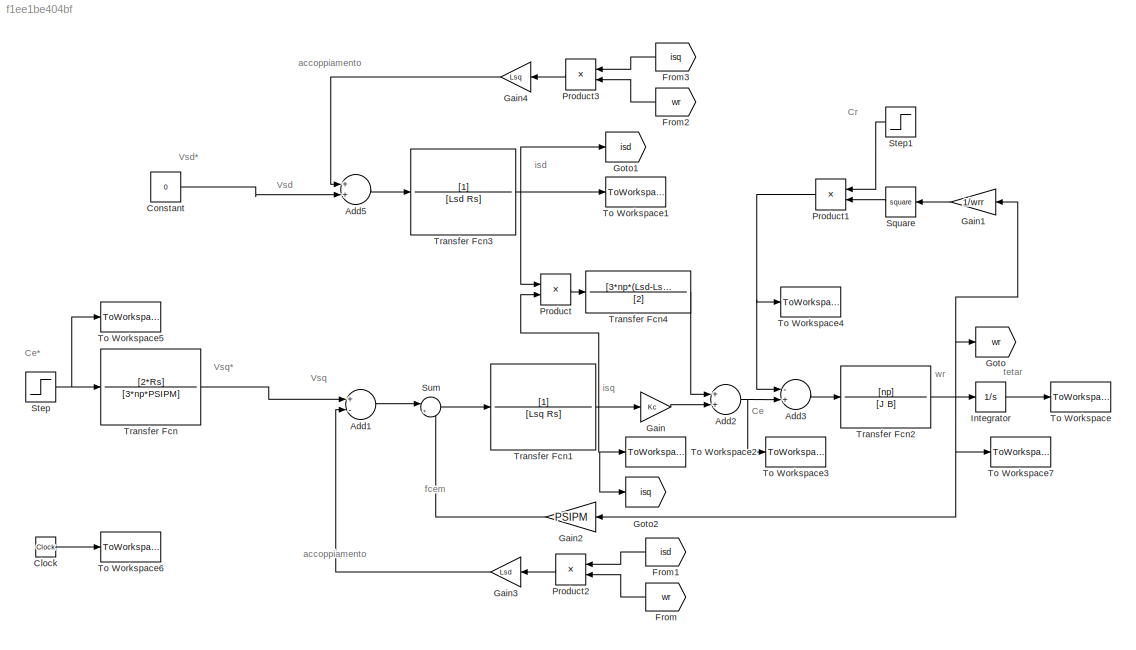
MODEL slx_f1ee1be404bf
KIND model
CONFIG AbsTol = auto
CONFIG EnableMultiTasking = off
CONFIG FixedStep = auto
CONFIG MaxStep = auto
CONFIG MinStep = auto
CONFIG RelTol = 1e-3
CONFIG SampleTimeConstraint = Unconstrained
CONFIG Solver = VariableStepAuto
CONFIG SolverName = VariableStepAuto
CONFIG StartTime = 0.0
CONFIG StopTime = 0.1
BLOCK [Sum] Add1
  InputSameDT = off
  Inputs = +-
  OutDataTypeStr = Inherit: Inherit via internal rule
  Ports = [2, 1]
  SaturateOnIntegerOverflow = off
BLOCK [Sum] Add2
  InputSameDT = off
  OutDataTypeStr = Inherit: Inherit via internal rule
  Ports = [2, 1]
  SaturateOnIntegerOverflow = off
BLOCK [Sum] Add3
  InputSameDT = off
  Inputs = -+
  OutDataTypeStr = Inherit: Inherit via internal rule
  Ports = [2, 1]
  SaturateOnIntegerOverflow = off
BLOCK [Sum] Add5
  InputSameDT = off
  OutDataTypeStr = Inherit: Inherit via internal rule
  Ports = [2, 1]
  SaturateOnIntegerOverflow = off
BLOCK [Clock] Clock
  Decimation = 1
BLOCK [Constant] Constant
  Value = 0
BLOCK [From] From
  GotoTag = wr
BLOCK [From] From1
  GotoTag = isd
BLOCK [From] From2
  GotoTag = wr
BLOCK [From] From3
  GotoTag = isq
BLOCK [Gain] Gain
  Gain = Kc
  OutDataTypeStr = Inherit: Inherit via internal rule
  ParamDataTypeStr = Inherit: Inherit via internal rule
  SaturateOnIntegerOverflow = off
BLOCK [Gain] Gain1
  Gain = 1/wrr
  OutDataTypeStr = Inherit: Inherit via internal rule
  ParamDataTypeStr = Inherit: Inherit via internal rule
  SaturateOnIntegerOverflow = off
BLOCK [Gain] Gain2
  Gain = PSIPM
  OutDataTypeStr = Inherit: Inherit via internal rule
  ParamDataTypeStr = Inherit: Inherit via internal rule
  SaturateOnIntegerOverflow = off
BLOCK [Gain] Gain3
  Gain = Lsd
  OutDataTypeStr = Inherit: Inherit via internal rule
  ParamDataTypeStr = Inherit: Inherit via internal rule
  SaturateOnIntegerOverflow = off
BLOCK [Gain] Gain4
  Gain = Lsq
  OutDataTypeStr = Inherit: Inherit via internal rule
  ParamDataTypeStr = Inherit: Inherit via internal rule
  SaturateOnIntegerOverflow = off
BLOCK [Goto] Goto
  GotoTag = wr
BLOCK [Goto] Goto1
  GotoTag = isd
BLOCK [Goto] Goto2
  GotoTag = isq
BLOCK [Integrator] Integrator
  Ports = [1, 1]
BLOCK [Product] Product
  InputSameDT = off
  OutDataTypeStr = Inherit: Inherit via internal rule
  Ports = [2, 1]
  RndMeth = Floor
  SaturateOnIntegerOverflow = off
BLOCK [Product] Product1
  InputSameDT = off
  OutDataTypeStr = Inherit: Inherit via internal rule
  Ports = [2, 1]
  RndMeth = Floor
  SaturateOnIntegerOverflow = off
BLOCK [Product] Product2
  InputSameDT = off
  OutDataTypeStr = Inherit: Inherit via internal rule
  Ports = [2, 1]
  RndMeth = Floor
  SaturateOnIntegerOverflow = off
BLOCK [Product] Product3
  InputSameDT = off
  OutDataTypeStr = Inherit: Inherit via internal rule
  Ports = [2, 1]
  RndMeth = Floor
  SaturateOnIntegerOverflow = off
BLOCK [Math] Square
  Operator = square
  Ports = [1, 1]
BLOCK [Step] Step
  After = Crn
  SampleTime = 0
  Time = 0
BLOCK [Step] Step1
  After = Crn
  SampleTime = 0
  Time = 0
BLOCK [Sum] Sum
  IconShape = round
  InputSameDT = off
  Inputs = |+-
  OutDataTypeStr = Inherit: Inherit via internal rule
  Ports = [2, 1]
  SaturateOnIntegerOverflow = off
BLOCK [ToWorkspace] To Workspace
  FixptAsFi = on
  MaxDataPoints = inf
  Ports = [1]
  SampleTime = -1
  Save2DSignal = 3-D array (concatenate along third dimension)
  VariableName = tetar
BLOCK [ToWorkspace] To Workspace1
  FixptAsFi = on
  MaxDataPoints = inf
  Ports = [1]
  SampleTime = -1
  Save2DSignal = 3-D array (concatenate along third dimension)
  VariableName = isd
BLOCK [ToWorkspace] To Workspace2
  FixptAsFi = on
  MaxDataPoints = inf
  Ports = [1]
  SampleTime = -1
  Save2DSignal = 3-D array (concatenate along third dimension)
  VariableName = isq
BLOCK [ToWorkspace] To Workspace3
  FixptAsFi = on
  MaxDataPoints = inf
  Ports = [1]
  SampleTime = -1
  Save2DSignal = 3-D array (concatenate along third dimension)
  VariableName = Ce
BLOCK [ToWorkspace] To Workspace4
  FixptAsFi = on
  MaxDataPoints = inf
  Ports = [1]
  SampleTime = -1
  Save2DSignal = 3-D array (concatenate along third dimension)
  VariableName = Cr
BLOCK [ToWorkspace] To Workspace5
  FixptAsFi = on
  MaxDataPoints = inf
  Ports = [1]
  SampleTime = -1
  Save2DSignal = 3-D array (concatenate along third dimension)
  VariableName = Cer
BLOCK [ToWorkspace] To Workspace6
  FixptAsFi = on
  MaxDataPoints = inf
  Ports = [1]
  SampleTime = -1
  Save2DSignal = 3-D array (concatenate along third dimension)
  VariableName = ts
BLOCK [ToWorkspace] To Workspace7
  FixptAsFi = on
  MaxDataPoints = inf
  Ports = [1]
  SampleTime = -1
  Save2DSignal = 3-D array (concatenate along third dimension)
  VariableName = wr
BLOCK [TransferFcn] Transfer Fcn
  Denominator = [3*np*PSIPM]
  Numerator = [2*Rs]
BLOCK [TransferFcn] Transfer Fcn1
  Denominator = [Lsq Rs]
BLOCK [TransferFcn] Transfer Fcn2
  Denominator = [J B]
  Numerator = [np]
BLOCK [TransferFcn] Transfer Fcn3
  Denominator = [Lsd Rs]
BLOCK [TransferFcn] Transfer Fcn4
  Denominator = [2]
  Numerator = [3*np*(Lsd-Lsq)]
ANNOTATION (root): Ce
ANNOTATION (root): Ce*
ANNOTATION (root): Cr
ANNOTATION (root): Vsd
ANNOTATION (root): Vsd*
ANNOTATION (root): Vsq
ANNOTATION (root): Vsq*
ANNOTATION (root): accoppiamento
ANNOTATION (root): fcem
ANNOTATION (root): isd
ANNOTATION (root): isq
ANNOTATION (root): tetar
ANNOTATION (root): wr
LINE Add1:1 -> Sum:1
NET Add2:1 -> Add3:2, To Workspace3:1
LINE Add3:1 -> Transfer Fcn2:1
LINE Add5:1 -> Transfer Fcn3:1
LINE Clock:1 -> To Workspace6:1
LINE Constant:1 -> Add5:2
LINE From1:1 -> Product2:1
LINE From2:1 -> Product3:2
LINE From3:1 -> Product3:1
LINE From:1 -> Product2:2
LINE Gain1:1 -> Square:1
LINE Gain2:1 -> Sum:2
LINE Gain3:1 -> Add1:2
LINE Gain4:1 -> Add5:1
LINE Gain:1 -> Add2:2
LINE Integrator:1 -> To Workspace:1
NET Product1:1 -> Add3:1, To Workspace4:1
LINE Product2:1 -> Gain3:1
LINE Product3:1 -> Gain4:1
LINE Product:1 -> Transfer Fcn4:1
LINE Square:1 -> Product1:2
LINE Step1:1 -> Product1:1
NET Step:1 -> To Workspace5:1, Transfer Fcn:1
LINE Sum:1 -> Transfer Fcn1:1
NET Transfer Fcn1:1 -> Gain:1, Goto2:1, Product:2, To Workspace2:1
NET Transfer Fcn2:1 -> Gain1:1, Gain2:1, Goto:1, Integrator:1, To Workspace7:1
NET Transfer Fcn3:1 -> Goto1:1, Product:1, To Workspace1:1
LINE Transfer Fcn4:1 -> Add2:1
LINE Transfer Fcn:1 -> Add1:1
note: NET lines group one-source signal fan-out (src -> all destinations, sorted); 1:1 wires keep LINE
